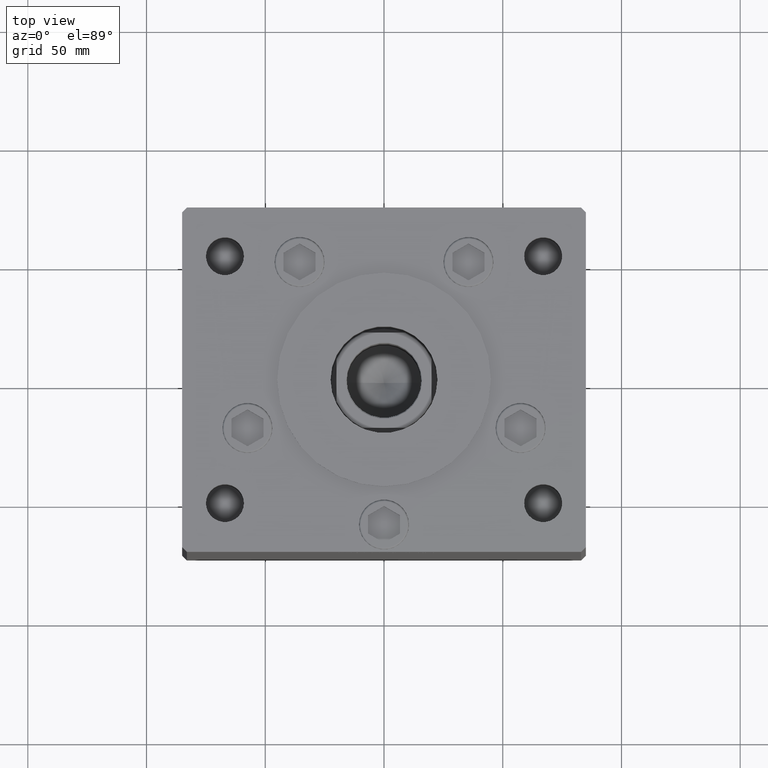
[diagram: clean part render]
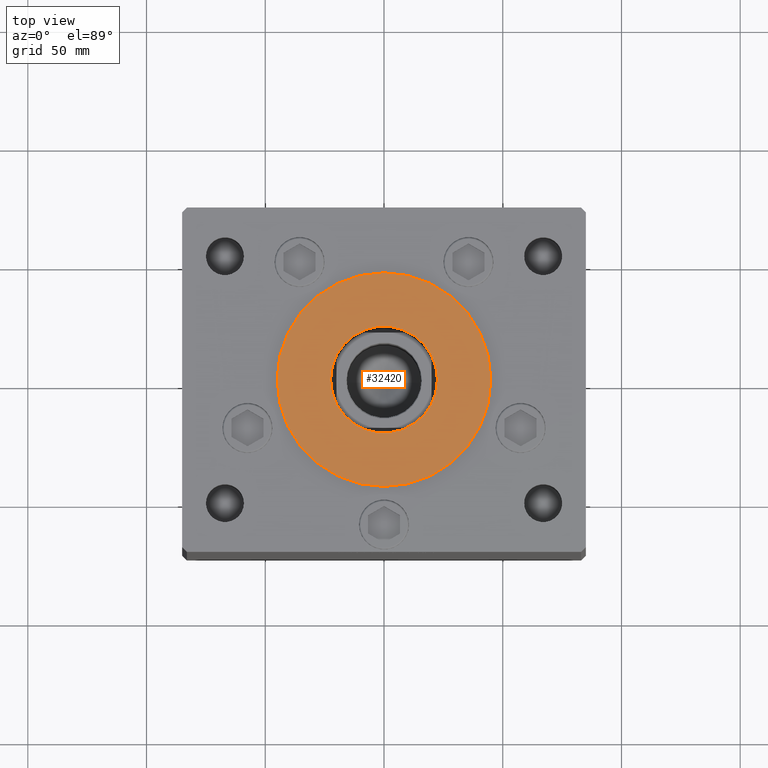
[diagram: same view with one face highlighted and labeled with its STEP entity id]
A machine part, top view. The second image highlights one B-rep face of the part: STEP entity #32420.
In plain terms, the highlighted planar face has unit normal (0, 0, 1).
Its self-contained STEP definition (entity closure, byte-faithful):
#292 = DIRECTION ( 'NONE',  ( 1.000000000000000000, 0.000000000000000000, 0.000000000000000000 ) ) ;
#731 = AXIS2_PLACEMENT_3D ( 'NONE', #28743, #8717, #292 ) ;
#849 = EDGE_LOOP ( 'NONE', ( #15427, #18931 ) ) ;
#6537 = DIRECTION ( 'NONE',  ( 0.000000000000000000, 0.000000000000000000, 1.000000000000000000 ) ) ;
#8717 = DIRECTION ( 'NONE',  ( 0.000000000000000000, 0.000000000000000000, 1.000000000000000000 ) ) ;
#8728 = EDGE_CURVE ( 'NONE', #50887, #39386, #39380, .T. ) ;
#9461 = DIRECTION ( 'NONE',  ( 1.000000000000000000, 0.000000000000000000, -0.000000000000000000 ) ) ;
#10162 = EDGE_CURVE ( 'NONE', #10549, #25669, #23442, .T. ) ;
#10549 = VERTEX_POINT ( 'NONE', #23290 ) ;
#10730 = CARTESIAN_POINT ( 'NONE',  ( 0.000000000000000000, -6.938893903907228378E-15, 2.000000000000000000 ) ) ;
#12586 = CIRCLE ( 'NONE', #22673, 45.00000000000000711 ) ;
#14179 = DIRECTION ( 'NONE',  ( 1.000000000000000000, 0.000000000000000000, 0.000000000000000000 ) ) ;
#15427 = ORIENTED_EDGE ( 'NONE', *, *, #32589, .F. ) ;
#17360 = CARTESIAN_POINT ( 'NONE',  ( 0.000000000000000000, -6.938893903907228378E-15, 2.000000000000000000 ) ) ;
#17539 = AXIS2_PLACEMENT_3D ( 'NONE', #40199, #44426, #28339 ) ;
#17665 = CIRCLE ( 'NONE', #26901, 22.50000000000000355 ) ;
#18931 = ORIENTED_EDGE ( 'NONE', *, *, #10162, .F. ) ;
#19480 = ORIENTED_EDGE ( 'NONE', *, *, #8728, .T. ) ;
#19831 = CARTESIAN_POINT ( 'NONE',  ( -45.00000000000000711, -6.938893903907228378E-15, 2.000000000000000000 ) ) ;
#20794 = PLANE ( 'NONE',  #35329 ) ;
#22673 = AXIS2_PLACEMENT_3D ( 'NONE', #50296, #6537, #14179 ) ;
#23290 = CARTESIAN_POINT ( 'NONE',  ( -22.50000000000000355, -4.183438605825683600E-15, 2.000000000000000000 ) ) ;
#23442 = CIRCLE ( 'NONE', #731, 22.50000000000000355 ) ;
#25018 = FACE_OUTER_BOUND ( 'NONE', #34916, .T. ) ;
#25669 = VERTEX_POINT ( 'NONE', #38250 ) ;
#26901 = AXIS2_PLACEMENT_3D ( 'NONE', #10730, #51053, #34207 ) ;
#28339 = DIRECTION ( 'NONE',  ( 1.000000000000000000, 0.000000000000000000, 0.000000000000000000 ) ) ;
#28743 = CARTESIAN_POINT ( 'NONE',  ( 0.000000000000000000, -6.938893903907228378E-15, 2.000000000000000000 ) ) ;
#31679 = ORIENTED_EDGE ( 'NONE', *, *, #31700, .T. ) ;
#31700 = EDGE_CURVE ( 'NONE', #39386, #50887, #12586, .T. ) ;
#32420 = ADVANCED_FACE ( 'NONE', ( #37647, #25018 ), #20794, .T. ) ;
#32589 = EDGE_CURVE ( 'NONE', #25669, #10549, #17665, .T. ) ;
#33697 = DIRECTION ( 'NONE',  ( 0.000000000000000000, 0.000000000000000000, 1.000000000000000000 ) ) ;
#34207 = DIRECTION ( 'NONE',  ( 1.000000000000000000, 0.000000000000000000, 0.000000000000000000 ) ) ;
#34916 = EDGE_LOOP ( 'NONE', ( #19480, #31679 ) ) ;
#35329 = AXIS2_PLACEMENT_3D ( 'NONE', #17360, #33697, #9461 ) ;
#37647 = FACE_BOUND ( 'NONE', #849, .T. ) ;
#38250 = CARTESIAN_POINT ( 'NONE',  ( 22.50000000000000355, -6.938893903907228378E-15, 2.000000000000000000 ) ) ;
#39380 = CIRCLE ( 'NONE', #17539, 45.00000000000000711 ) ;
#39386 = VERTEX_POINT ( 'NONE', #41195 ) ;
#40199 = CARTESIAN_POINT ( 'NONE',  ( 0.000000000000000000, -6.938893903907228378E-15, 2.000000000000000000 ) ) ;
#41195 = CARTESIAN_POINT ( 'NONE',  ( 45.00000000000000711, -1.427983307744138033E-15, 2.000000000000000000 ) ) ;
#44426 = DIRECTION ( 'NONE',  ( 0.000000000000000000, 0.000000000000000000, 1.000000000000000000 ) ) ;
#50296 = CARTESIAN_POINT ( 'NONE',  ( 0.000000000000000000, -6.938893903907228378E-15, 2.000000000000000000 ) ) ;
#50887 = VERTEX_POINT ( 'NONE', #19831 ) ;
#51053 = DIRECTION ( 'NONE',  ( 0.000000000000000000, 0.000000000000000000, 1.000000000000000000 ) ) ;